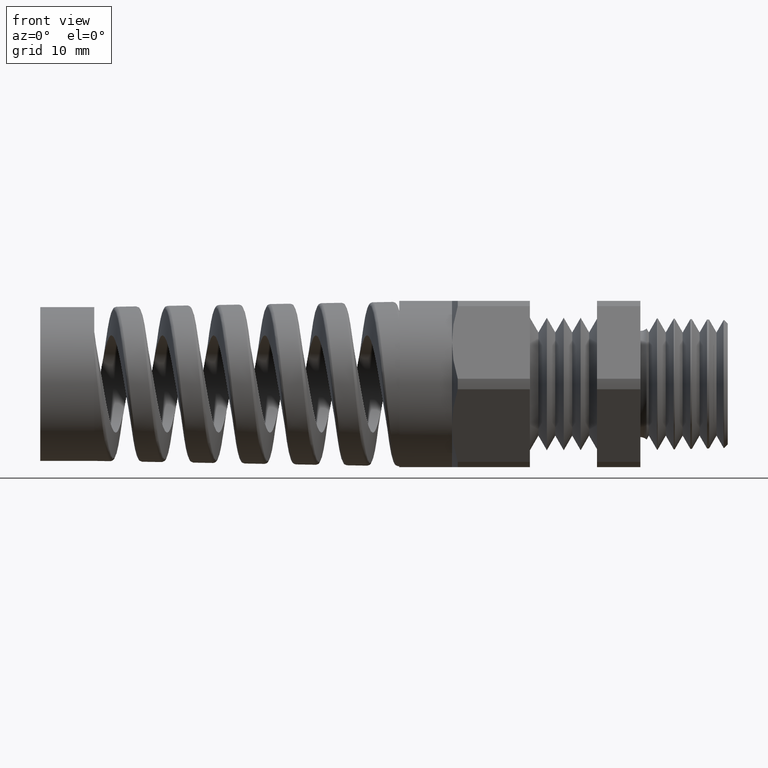
[diagram: clean part render]
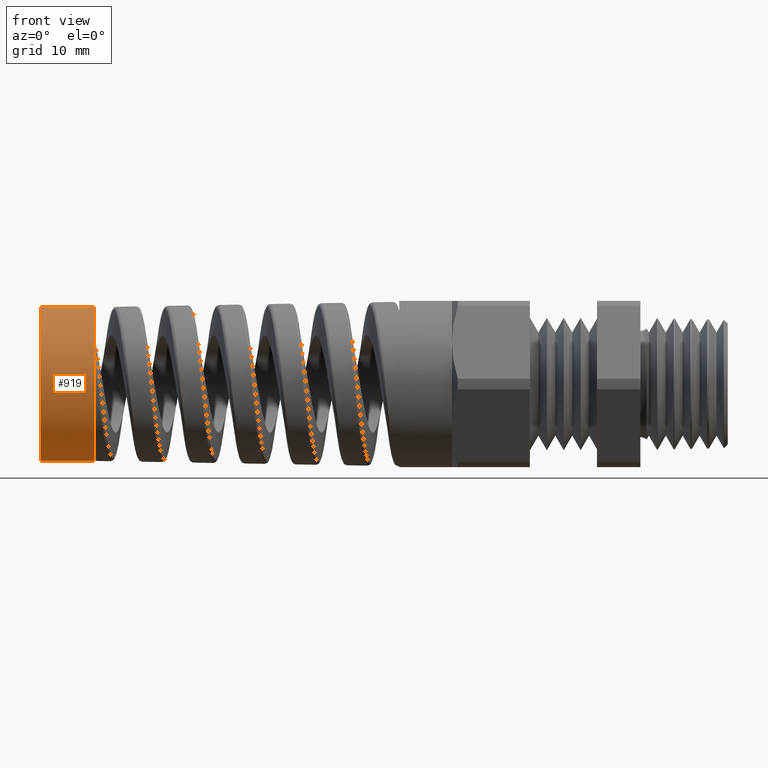
[diagram: same view with one face highlighted and labeled with its STEP entity id]
A machine part, front view. The second image highlights one B-rep face of the part: STEP entity #919.
In plain terms, the highlighted cylindrical surface (partial cylindrical patch) has radius 6.9301 mm, axis along (1, 0, 0).
Its self-contained STEP definition (entity closure, byte-faithful):
#836 = EDGE_LOOP ( 'NONE', ( #896, #897, #898, #899, #900 ) ) ;
#843 = EDGE_CURVE ( 'NONE', #1143, #1072, #3510, .T. ) ;
#896 = ORIENTED_EDGE ( 'NONE', *, *, #1163, .F. ) ;
#897 = ORIENTED_EDGE ( 'NONE', *, *, #914, .F. ) ;
#898 = ORIENTED_EDGE ( 'NONE', *, *, #1065, .T. ) ;
#899 = ORIENTED_EDGE ( 'NONE', *, *, #1148, .F. ) ;
#900 = ORIENTED_EDGE ( 'NONE', *, *, #843, .T. ) ;
#914 = EDGE_CURVE ( 'NONE', #1240, #1185, #7204, .T. ) ;
#919 = ADVANCED_FACE ( 'NONE', ( #7200 ), #7198, .T. ) ;
#1065 = EDGE_CURVE ( 'NONE', #1240, #1070, #5596, .T. ) ;
#1070 = VERTEX_POINT ( 'NONE', #5581 ) ;
#1072 = VERTEX_POINT ( 'NONE', #5580 ) ;
#1143 = VERTEX_POINT ( 'NONE', #7784 ) ;
#1148 = EDGE_CURVE ( 'NONE', #1143, #1070, #7810, .T. ) ;
#1163 = EDGE_CURVE ( 'NONE', #1185, #1072, #7983, .T. ) ;
#1185 = VERTEX_POINT ( 'NONE', #8000 ) ;
#1240 = VERTEX_POINT ( 'NONE', #8395 ) ;
#3506 = DIRECTION ( 'NONE',  ( 0.0000000000000000000, 0.0000000000000000000, 1.000000000000000000 ) ) ;
#3507 = DIRECTION ( 'NONE',  ( -1.000000000000000000, 0.0000000000000000000, 0.0000000000000000000 ) ) ;
#3508 = CARTESIAN_POINT ( 'NONE',  ( -1.938299999999999900, 0.0000000000000000000, 0.0000000000000000000 ) ) ;
#3509 = AXIS2_PLACEMENT_3D ( 'NONE', #3508, #3507, #3506 ) ;
#3510 = CIRCLE ( 'NONE', #3509, 0.2728399223201307100 ) ;
#5580 = CARTESIAN_POINT ( 'NONE',  ( -1.938299999999999900, 3.341325375489605000E-017, 0.2728399223201307100 ) ) ;
#5581 = CARTESIAN_POINT ( 'NONE',  ( -1.938299999999999900, 0.0000000000000000000, -0.2728399223203811800 ) ) ;
#5593 = DIRECTION ( 'NONE',  ( 1.000000000000000000, 0.0000000000000000000, 0.0000000000000000000 ) ) ;
#5594 = VECTOR ( 'NONE', #5593, 39.37007874015748100 ) ;
#5595 = CARTESIAN_POINT ( 'NONE',  ( -2.129999999999999900, 0.0000000000000000000, -0.2728399223201307100 ) ) ;
#5596 = LINE ( 'NONE', #5595, #5594 ) ;
#7198 = CYLINDRICAL_SURFACE ( 'NONE', #7199, 0.2728399223201307100 ) ;
#7199 = AXIS2_PLACEMENT_3D ( 'NONE', #7259, #7258, #7257 ) ;
#7200 = FACE_OUTER_BOUND ( 'NONE', #836, .T. ) ;
#7201 = DIRECTION ( 'NONE',  ( 0.0000000000000000000, 0.0000000000000000000, 1.000000000000000000 ) ) ;
#7202 = DIRECTION ( 'NONE',  ( -1.000000000000000000, 0.0000000000000000000, 0.0000000000000000000 ) ) ;
#7203 = AXIS2_PLACEMENT_3D ( 'NONE', #7224, #7202, #7201 ) ;
#7204 = CIRCLE ( 'NONE', #7203, 0.2728399223201307100 ) ;
#7224 = CARTESIAN_POINT ( 'NONE',  ( -2.129999999999999900, 0.0000000000000000000, 0.0000000000000000000 ) ) ;
#7257 = DIRECTION ( 'NONE',  ( 0.0000000000000000000, 0.0000000000000000000, -1.000000000000000000 ) ) ;
#7258 = DIRECTION ( 'NONE',  ( 1.000000000000000000, 0.0000000000000000000, 0.0000000000000000000 ) ) ;
#7259 = CARTESIAN_POINT ( 'NONE',  ( -2.129999999999999900, 0.0000000000000000000, 0.0000000000000000000 ) ) ;
#7784 = CARTESIAN_POINT ( 'NONE',  ( -1.938299999999999900, -0.2485554567494220900, 0.1125247000962060800 ) ) ;
#7806 = DIRECTION ( 'NONE',  ( 0.0000000000000000000, 0.0000000000000000000, -1.000000000000000000 ) ) ;
#7807 = DIRECTION ( 'NONE',  ( 1.000000000000000000, 0.0000000000000000000, 0.0000000000000000000 ) ) ;
#7808 = CARTESIAN_POINT ( 'NONE',  ( -1.938299999999999900, 0.0000000000000000000, 0.0000000000000000000 ) ) ;
#7809 = AXIS2_PLACEMENT_3D ( 'NONE', #7808, #7807, #7806 ) ;
#7810 = CIRCLE ( 'NONE', #7809, 0.2728399223203811800 ) ;
#7980 = DIRECTION ( 'NONE',  ( 1.000000000000000000, 0.0000000000000000000, 0.0000000000000000000 ) ) ;
#7981 = VECTOR ( 'NONE', #7980, 39.37007874015748100 ) ;
#7982 = CARTESIAN_POINT ( 'NONE',  ( -2.129999999999999900, 3.341325375489605000E-017, 0.2728399223201307100 ) ) ;
#7983 = LINE ( 'NONE', #7982, #7981 ) ;
#8000 = CARTESIAN_POINT ( 'NONE',  ( -2.129999999999999900, 3.341325375489605000E-017, 0.2728399223201307100 ) ) ;
#8395 = CARTESIAN_POINT ( 'NONE',  ( -2.129999999999999900, 0.0000000000000000000, -0.2728399223201307100 ) ) ;